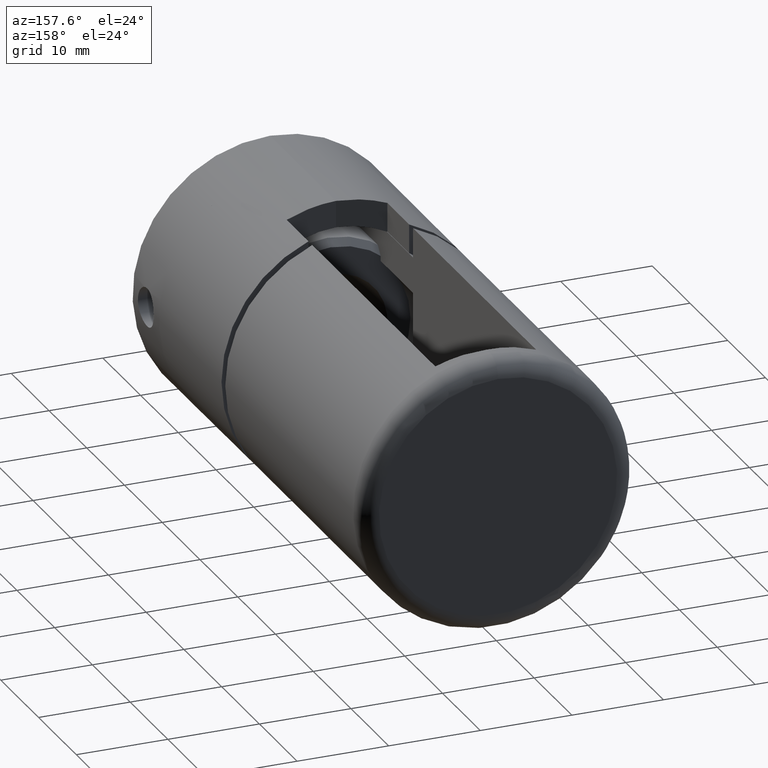
[diagram: clean part render]
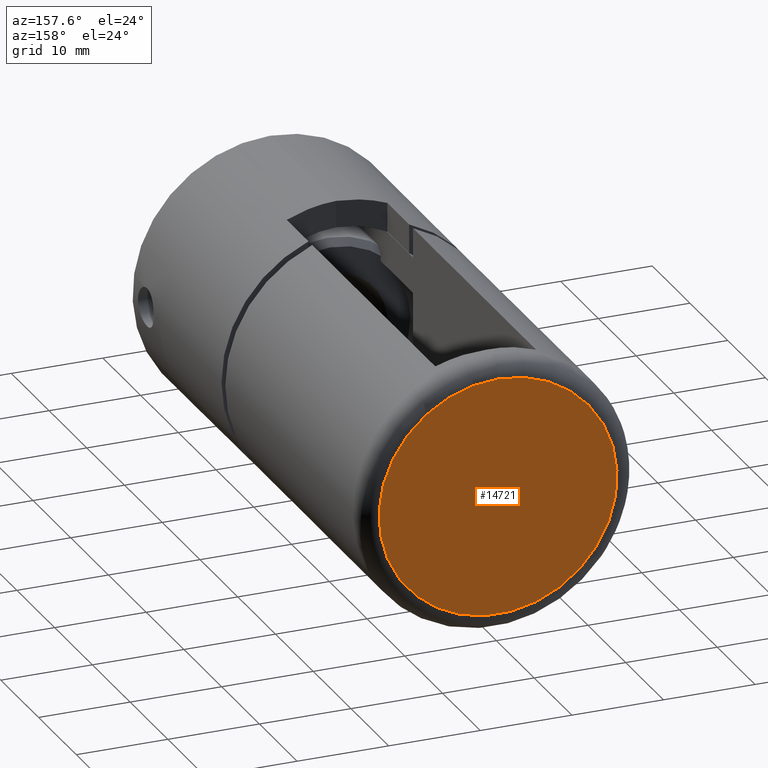
[diagram: same view with one face highlighted and labeled with its STEP entity id]
A machine part, auxiliary view. The second image highlights one B-rep face of the part: STEP entity #14721.
In plain terms, the highlighted planar face has unit normal (0, 1, 0).
Its self-contained STEP definition (entity closure, byte-faithful):
#368 = DIRECTION ( 'NONE',  ( 0.0000000000000000000, -1.000000000000000000, 0.0000000000000000000 ) ) ;
#653 = AXIS2_PLACEMENT_3D ( 'NONE', #13914, #368, #16512 ) ;
#2971 = EDGE_LOOP ( 'NONE', ( #5358 ) ) ;
#4892 = CARTESIAN_POINT ( 'NONE',  ( 0.0000000000000000000, 1.500000000000000000, -13.00000000000000000 ) ) ;
#5358 = ORIENTED_EDGE ( 'NONE', *, *, #10181, .T. ) ;
#5925 = PLANE ( 'NONE',  #653 ) ;
#9809 = CARTESIAN_POINT ( 'NONE',  ( 0.0000000000000000000, 1.500000000000000000, 0.0000000000000000000 ) ) ;
#10181 = EDGE_CURVE ( 'NONE', #12969, #12969, #14519, .T. ) ;
#11270 = DIRECTION ( 'NONE',  ( 0.0000000000000000000, 0.0000000000000000000, -1.000000000000000000 ) ) ;
#12969 = VERTEX_POINT ( 'NONE', #4892 ) ;
#13794 = DIRECTION ( 'NONE',  ( 0.0000000000000000000, -1.000000000000000000, 0.0000000000000000000 ) ) ;
#13914 = CARTESIAN_POINT ( 'NONE',  ( 0.0000000000000000000, 1.500000000000000000, 0.0000000000000000000 ) ) ;
#14519 = CIRCLE ( 'NONE', #14966, 13.00000000000000000 ) ;
#14721 = ADVANCED_FACE ( 'NONE', ( #16543 ), #5925, .T. ) ;
#14966 = AXIS2_PLACEMENT_3D ( 'NONE', #9809, #13794, #11270 ) ;
#16512 = DIRECTION ( 'NONE',  ( 0.0000000000000000000, -0.0000000000000000000, -1.000000000000000000 ) ) ;
#16543 = FACE_OUTER_BOUND ( 'NONE', #2971, .T. ) ;